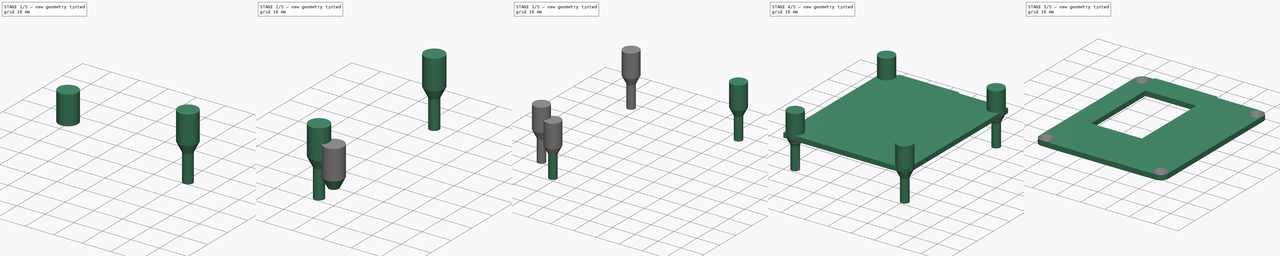
[diagram: build sequence overview — one tinted view per stage of 5, left to right]
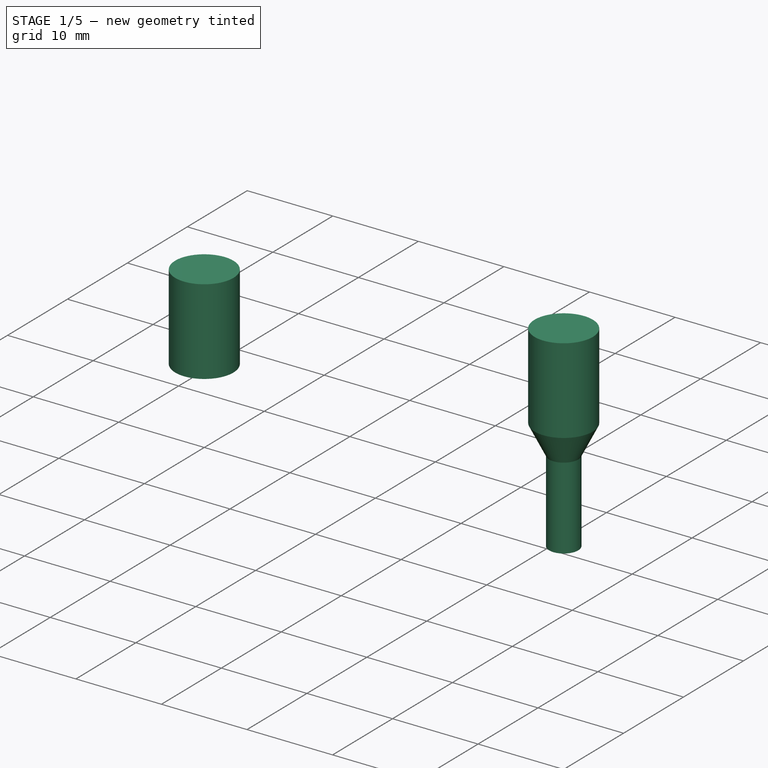
[diagram: stage 1 of 5 — iso view after this stage's code; geometry added in this stage tinted green]
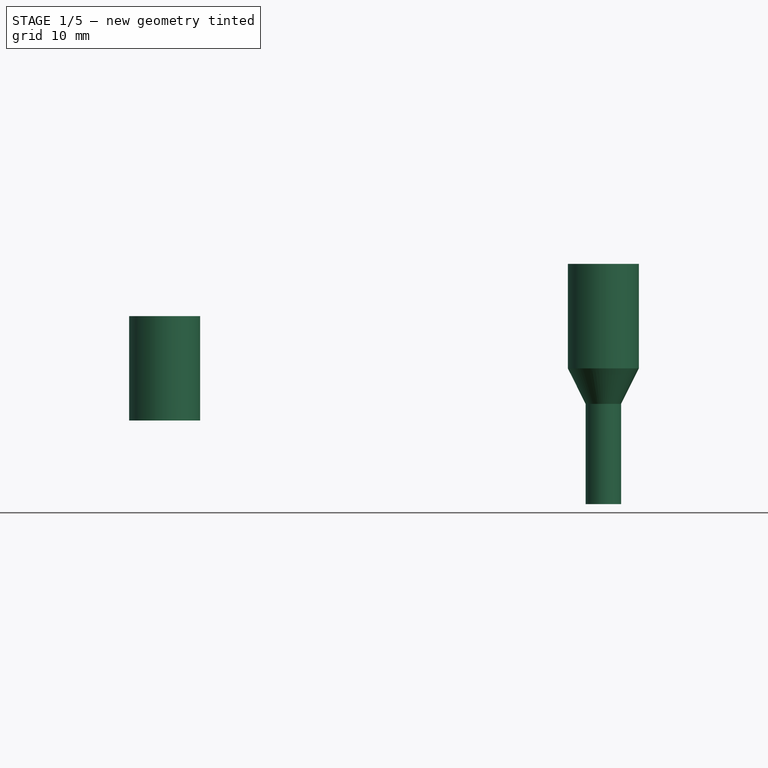
[diagram: stage 1 of 5 — front view after this stage's code; geometry added in this stage tinted green]
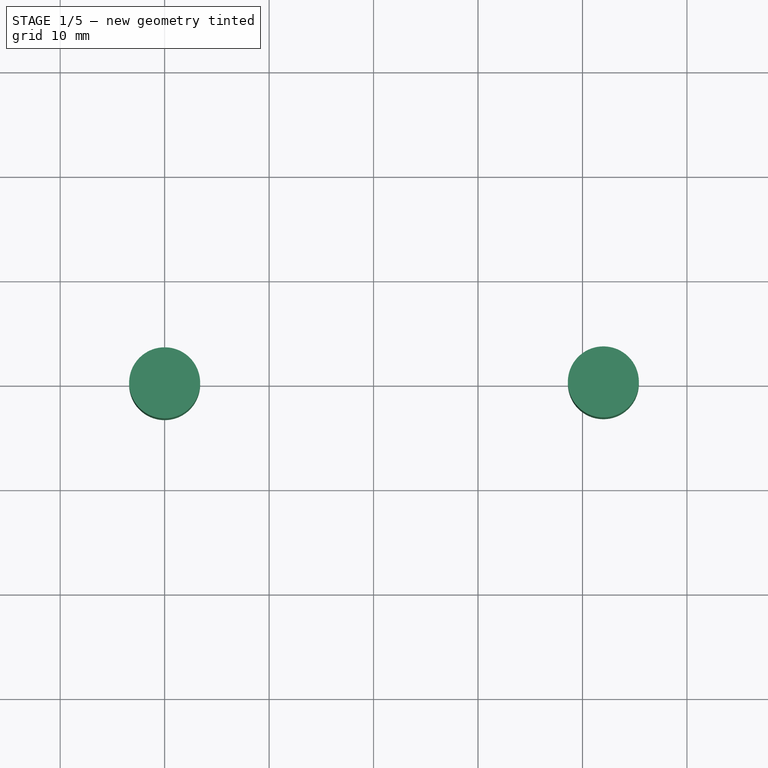
[diagram: stage 1 of 5 — top view after this stage's code; geometry added in this stage tinted green]
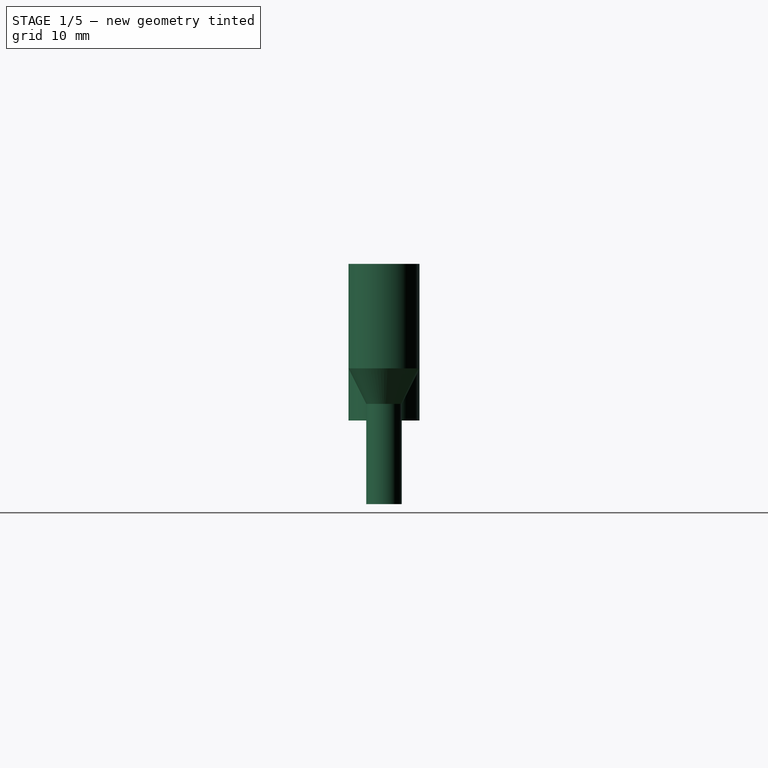
[diagram: stage 1 of 5 — right view after this stage's code; geometry added in this stage tinted green]
FCSTD DOCUMENT  (FreeCAD 0.19R24291 (Git))
Label: top-flat
License: All rights reserved
LicenseURL: http://en.wikipedia.org/wiki/All_rights_reserved
objects: Part::MultiFuse×8, Part::Cylinder×8, Part::Cone×4, Sketcher::SketchObject×2, PartDesign::Pad×2, Part::Cut×2, PartDesign::Body×1, Part::Compound×1, Part::Box×1, Part::Fillet×1
note: 32 computed .brp shape members not serialized (recipe doc carries the construction recipe); baked Part::Feature solids carry a one-line shape summary decoded from their .brp

FEATURE [Part::Cone] Cone003  label="grab-screw-head002"
  Angle = 360
  AttacherType = Attacher::AttachEngine3D
  Height = 3.4
  Radius1 = 1.7
  Radius2 = 3.4
FEATURE [Part::Cylinder] Cylinder005  label="grab-screw-head-extension002"
  Angle = 360
  AttacherType = Attacher::AttachEngine3D
  Height = 10
  Placement = pos=(0,0,3.4) rot=(0,0,1;0rad)
  Radius = 3.4
FEATURE [Part::Cylinder] Cylinder007  label="grab-screw-thread003"
  Angle = 360
  AttacherType = Attacher::AttachEngine3D
  Height = 9.6
  Placement = pos=(0,0,-9.6) rot=(0,0,1;0rad)
  Radius = 1.7
FEATURE [Part::MultiFuse] Fusion005  label="grab-screw003"
  Placement = pos=(42,0,5) rot=(0,0,1;0rad)
  Shapes = -> [Cylinder007,Cone003,Cylinder005]
FEATURE [Part::Cylinder] Cylinder008  label="grab-screw-head-extension003"
  Angle = 360
  AttacherType = Attacher::AttachEngine3D
  Height = 10
  Placement = pos=(0,0,3.4) rot=(0,0,1;0rad)
  Radius = 3.4
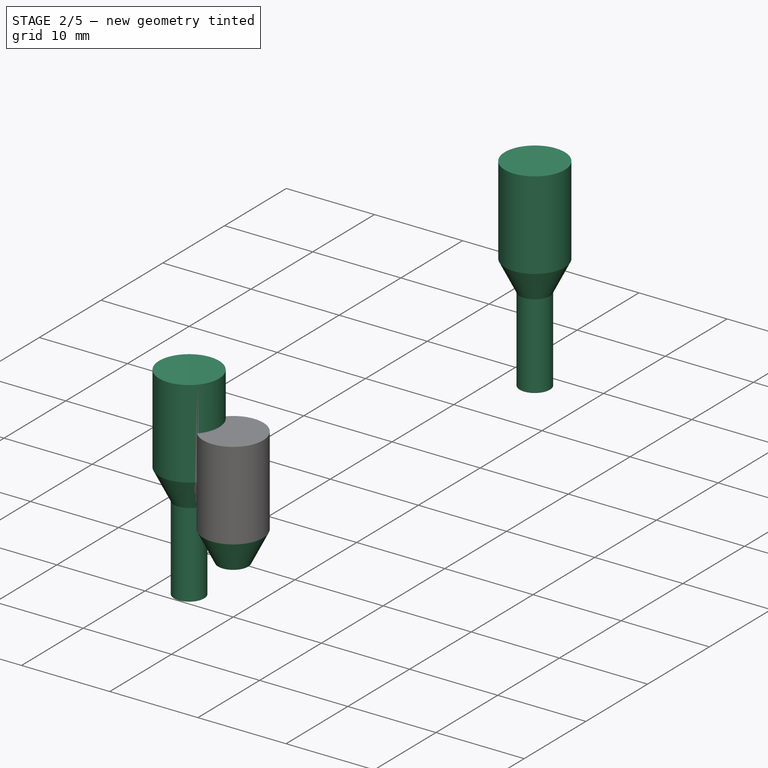
[diagram: stage 2 of 5 — iso view after this stage's code; geometry added in this stage tinted green]
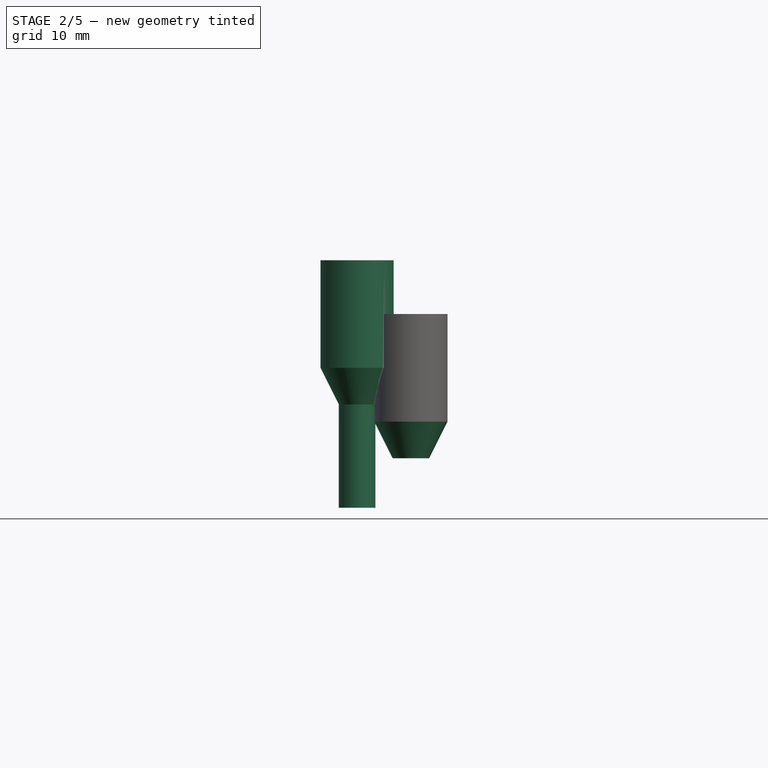
[diagram: stage 2 of 5 — front view after this stage's code; geometry added in this stage tinted green]
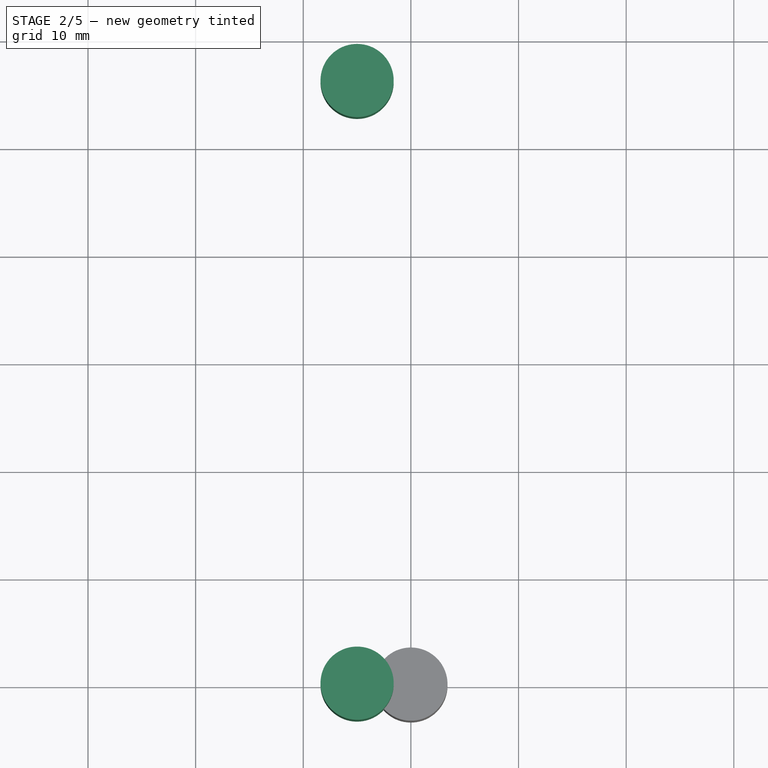
[diagram: stage 2 of 5 — top view after this stage's code; geometry added in this stage tinted green]
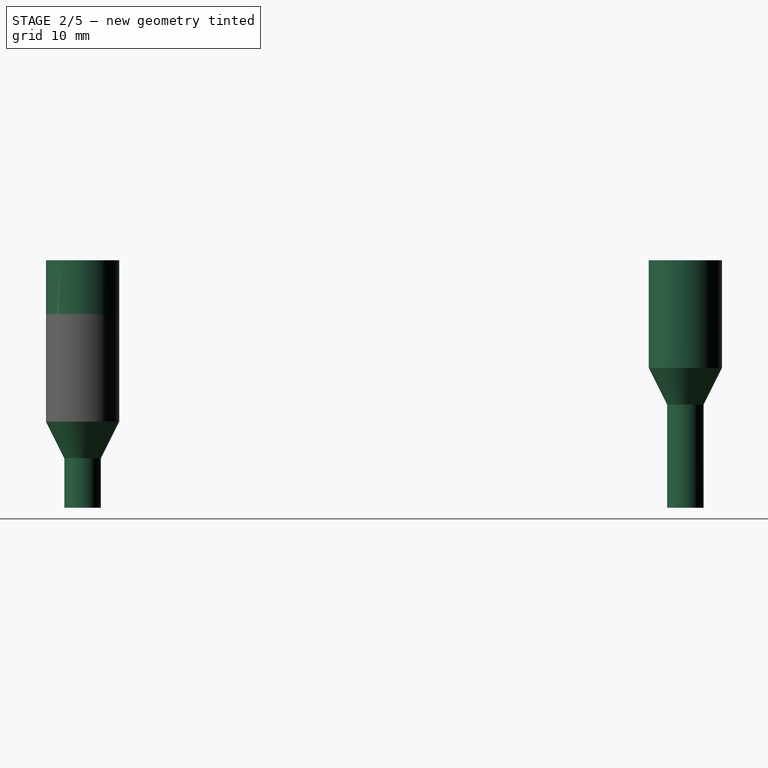
[diagram: stage 2 of 5 — right view after this stage's code; geometry added in this stage tinted green]
FEATURE [Part::Cone] Cone001  label="grab-screw-head"
  Angle = 360
  AttacherType = Attacher::AttachEngine3D
  Height = 3.4
  Radius1 = 1.7
  Radius2 = 3.4
FEATURE [Part::Cylinder] Cylinder002  label="grab-screw-head-extension"
  Angle = 360
  AttacherType = Attacher::AttachEngine3D
  Height = 10
  Placement = pos=(0,0,3.4) rot=(0,0,1;0rad)
  Radius = 3.4
FEATURE [Part::Cylinder] Cylinder006  label="grab-screw-thread002"
  Angle = 360
  AttacherType = Attacher::AttachEngine3D
  Height = 9.6
  Placement = pos=(0,0,-9.6) rot=(0,0,1;0rad)
  Radius = 1.7
FEATURE [Part::Cone] Cone004  label="grab-screw-head003"
  Angle = 360
  AttacherType = Attacher::AttachEngine3D
  Height = 3.4
  Radius1 = 1.7
  Radius2 = 3.4
FEATURE [Part::MultiFuse] Fusion004  label="grab-screw002"
  Placement = pos=(42,56,5) rot=(0,0,1;0rad)
  Shapes = -> [Cylinder006,Cone004,Cylinder008]
FEATURE [Part::MultiFuse] Fusion003  label="left-screws"
  Placement = pos=(-47,0,0) rot=(0,0,1;0rad)
  Shapes = -> [Fusion005,Fusion004]
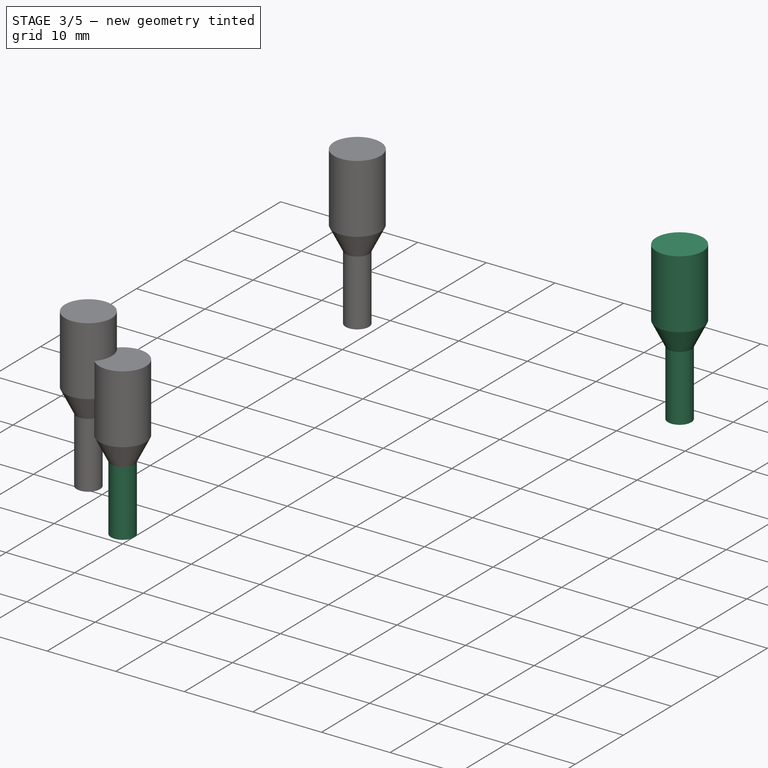
[diagram: stage 3 of 5 — iso view after this stage's code; geometry added in this stage tinted green]
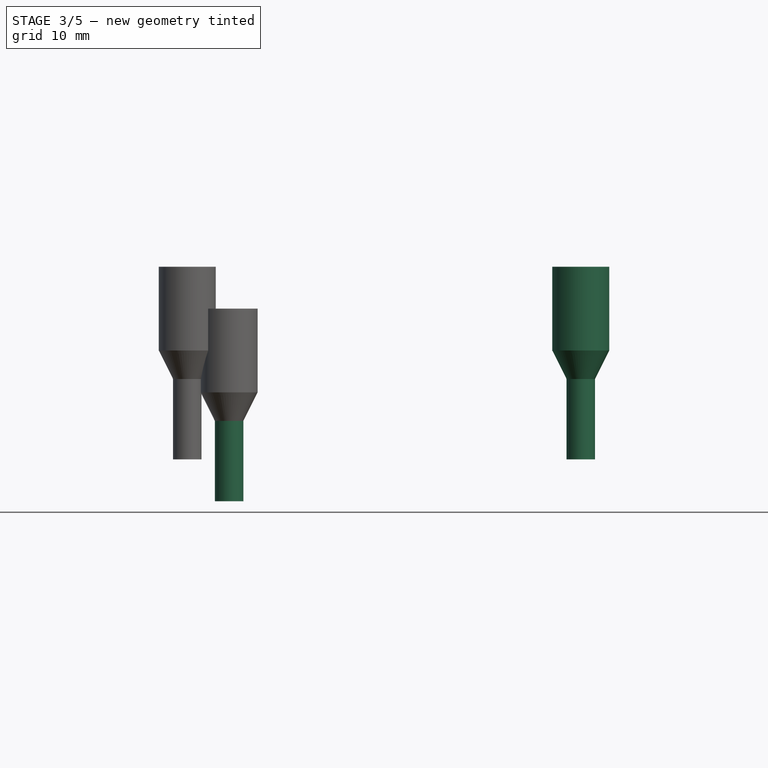
[diagram: stage 3 of 5 — front view after this stage's code; geometry added in this stage tinted green]
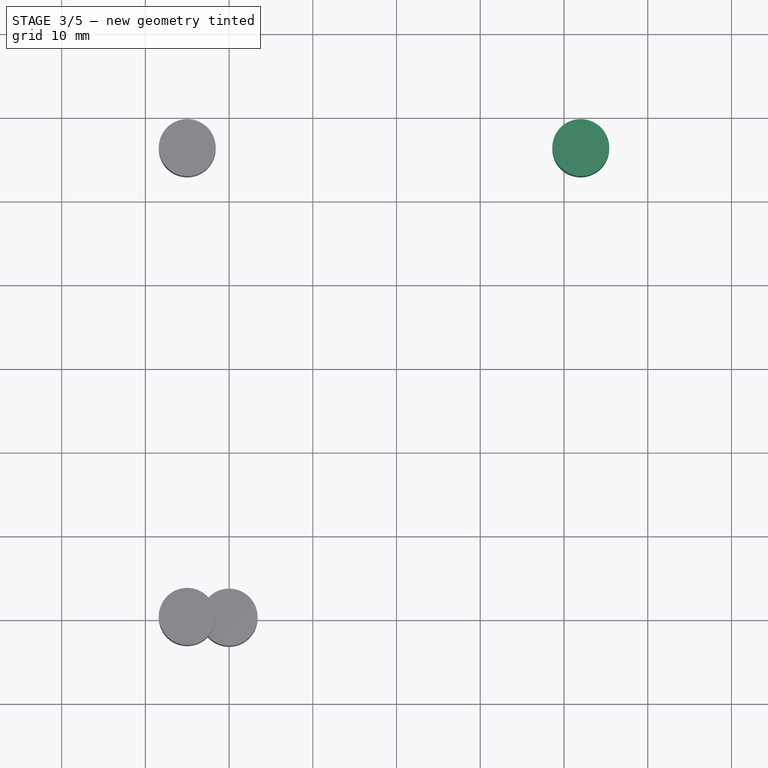
[diagram: stage 3 of 5 — top view after this stage's code; geometry added in this stage tinted green]
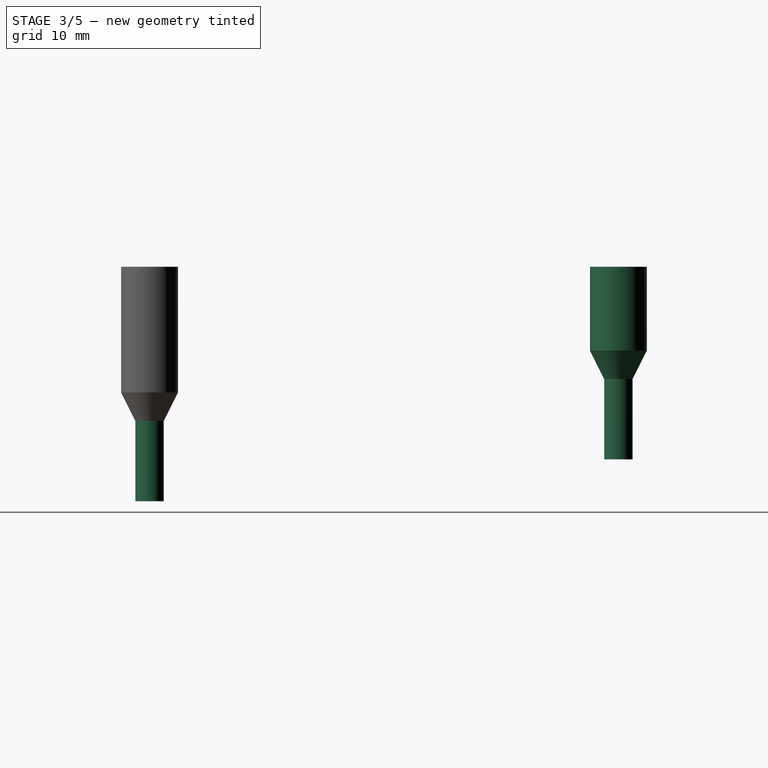
[diagram: stage 3 of 5 — right view after this stage's code; geometry added in this stage tinted green]
FEATURE [Part::Cone] Cone002  label="grab-screw-head001"
  Angle = 360
  AttacherType = Attacher::AttachEngine3D
  Height = 3.4
  Radius1 = 1.7
  Radius2 = 3.4
FEATURE [Part::Cylinder] Cylinder003  label="grab-screw-head-extension001"
  Angle = 360
  AttacherType = Attacher::AttachEngine3D
  Height = 10
  Placement = pos=(0,0,3.4) rot=(0,0,1;0rad)
  Radius = 3.4
FEATURE [Part::Cylinder] Cylinder004  label="grab-screw-thread001"
  Angle = 360
  AttacherType = Attacher::AttachEngine3D
  Height = 9.6
  Placement = pos=(0,0,-9.6) rot=(0,0,1;0rad)
  Radius = 1.7
FEATURE [Part::MultiFuse] Fusion002  label="grab-screw001"
  Placement = pos=(42,56,5) rot=(0,0,1;0rad)
  Shapes = -> [Cylinder004,Cone002,Cylinder003]
FEATURE [Part::Cylinder] Cylinder001  label="grab-screw-thread"
  Angle = 360
  AttacherType = Attacher::AttachEngine3D
  Height = 9.6
  Placement = pos=(0,0,-9.6) rot=(0,0,1;0rad)
  Radius = 1.7
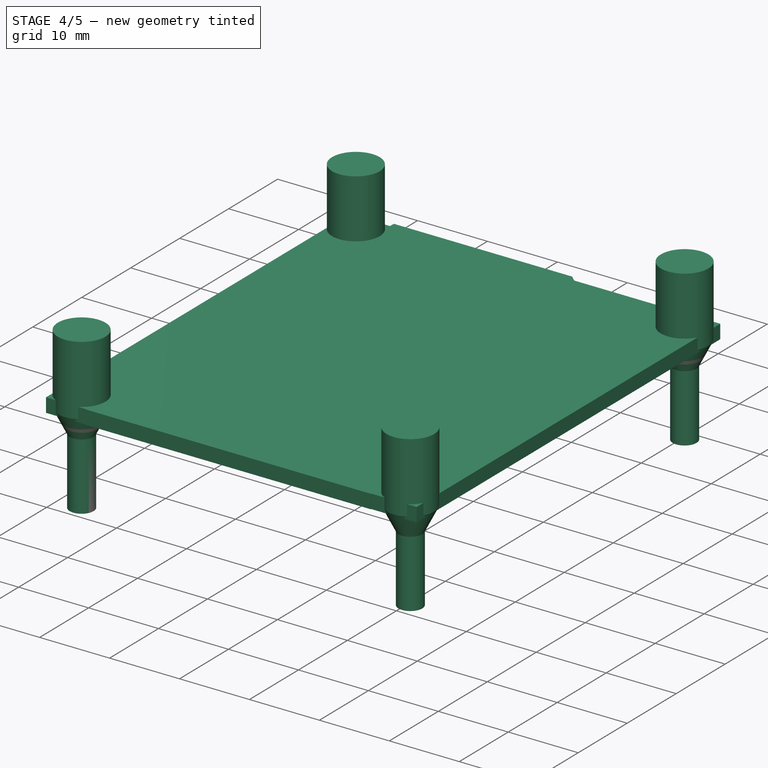
[diagram: stage 4 of 5 — iso view after this stage's code; geometry added in this stage tinted green]
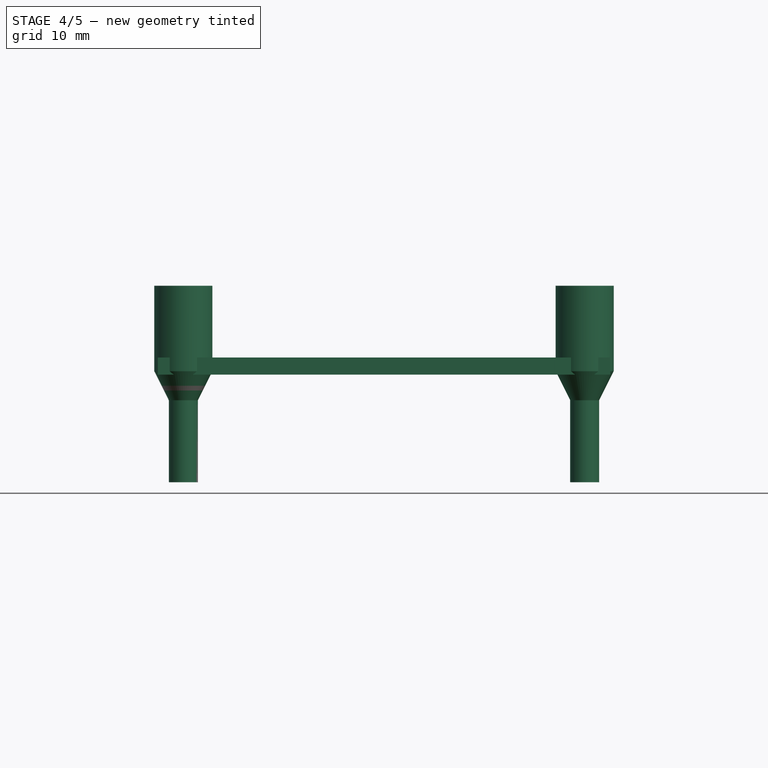
[diagram: stage 4 of 5 — front view after this stage's code; geometry added in this stage tinted green]
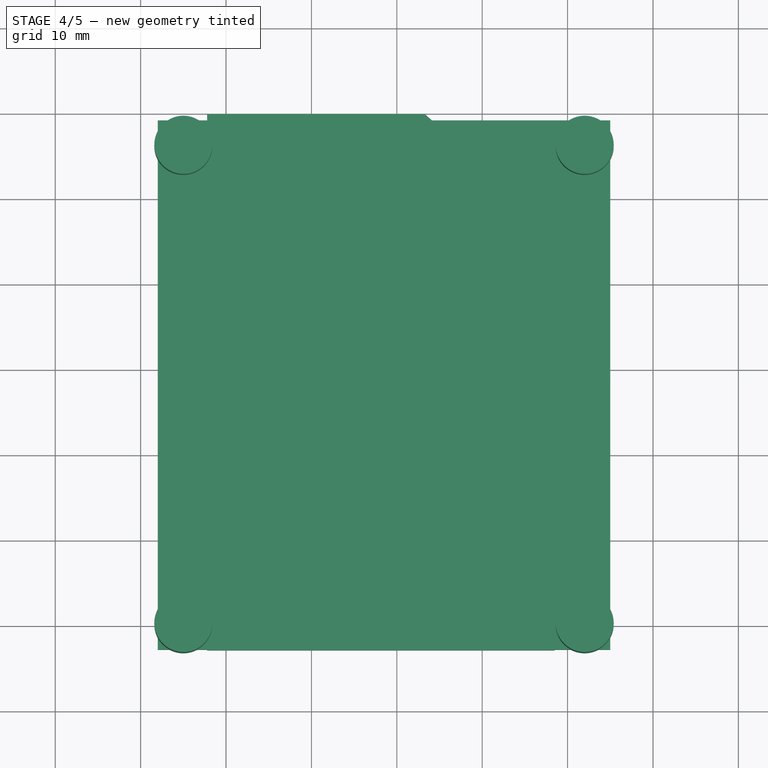
[diagram: stage 4 of 5 — top view after this stage's code; geometry added in this stage tinted green]
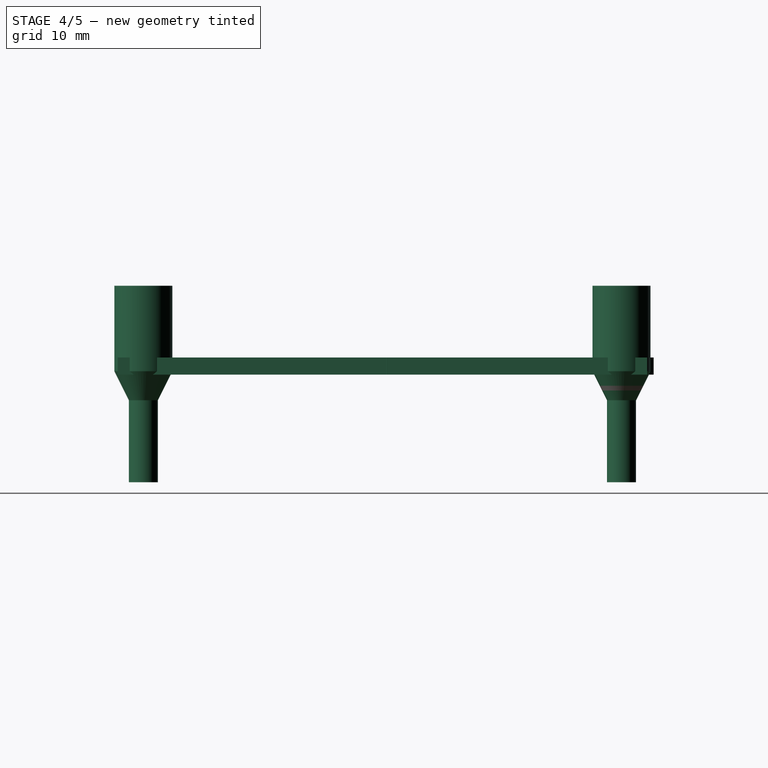
[diagram: stage 4 of 5 — right view after this stage's code; geometry added in this stage tinted green]
FEATURE [PartDesign::Body] Body001  label="bottom-button"
  Group = -> [Sketch001,Pad001]
  Origin = -> Origin001
  Placement = pos=(0,0,-2) rot=(0,0,1;0rad)
  Tip = -> Pad001
FEATURE [Sketcher::SketchObject] Sketch002
  FullyConstrained = false
  MapMode = 5
  Support = -> [XY_Plane002]
  sketch-geometry (6):
    g0: LineSegment StartX=-2.21516 StartY=59.7598 StartZ=0 EndX=-2.21516 EndY=-3.07541 EndZ=0
    g1: LineSegment StartX=-2.21516 StartY=-3.07541 StartZ=0 EndX=38.4894 EndY=-3.07541 EndZ=0
    g2: LineSegment StartX=38.4894 StartY=-3.07541 StartZ=0 EndX=45.01 EndY=28.5398 EndZ=0
    g3: LineSegment StartX=45.01 StartY=28.5398 StartZ=0 EndX=36.9087 EndY=47.5089 EndZ=0
    g4: LineSegment StartX=36.9087 StartY=47.5089 StartZ=0 EndX=23.2746 EndY=59.7598 EndZ=0
    g5: LineSegment StartX=23.2746 StartY=59.7598 StartZ=0 EndX=-2.21516 EndY=59.7598 EndZ=0
  constraints (9):
    c: Vertical(g0)
    c: Coincident(g0,g1)
    c: Horizontal(g1)
    c: Coincident(g1,g2)
    c: Coincident(g2,g3)
    c: Coincident(g3,g4)
    c: Coincident(g4,g5)
    c: Coincident(g5,g0)
    c: Horizontal(g5)
FEATURE [PartDesign::Pad] Pad002
  Direction = (1,1,1)
  Length = 2
  Length2 = 100
  Profile = -> Sketch002
  Type = 0
FEATURE [Part::Compound] Compound
  Links = -> [Pad002]
  Placement = pos=(0,0,20) rot=(0,0,1;0rad)
FEATURE [Part::Box] Box001  label="top-plate001"
  AttacherType = Attacher::AttachEngine3D
  Height = 2
  Length = 53
  Placement = pos=(-8,-3,20) rot=(0,0,1;0rad)
  Width = 62
FEATURE [Part::MultiFuse] Fusion001  label="grab-screw"
  Placement = pos=(42,0,5) rot=(0,0,1;0rad)
  Shapes = -> [Cylinder001,Cone001,Cylinder002]
FEATURE [Part::MultiFuse] Fusion  label="right-screws"
  Shapes = -> [Fusion001,Fusion002]
FEATURE [Part::MultiFuse] Fusion006  label="all-screws"
  Placement = pos=(0,0,12) rot=(0,0,1;0rad)
  Shapes = -> [Fusion003,Fusion]
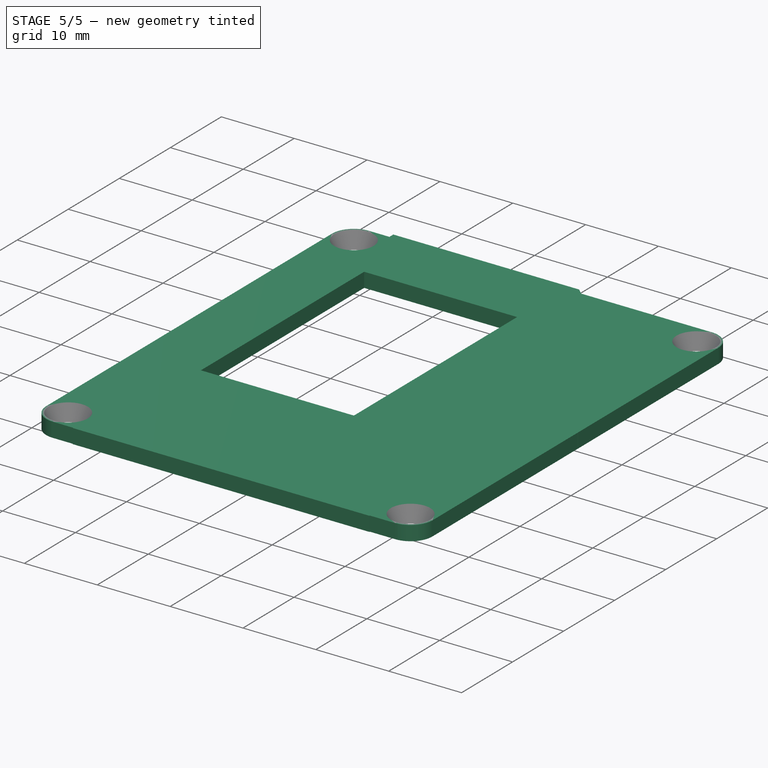
[diagram: stage 5 of 5 — iso view after this stage's code; geometry added in this stage tinted green]
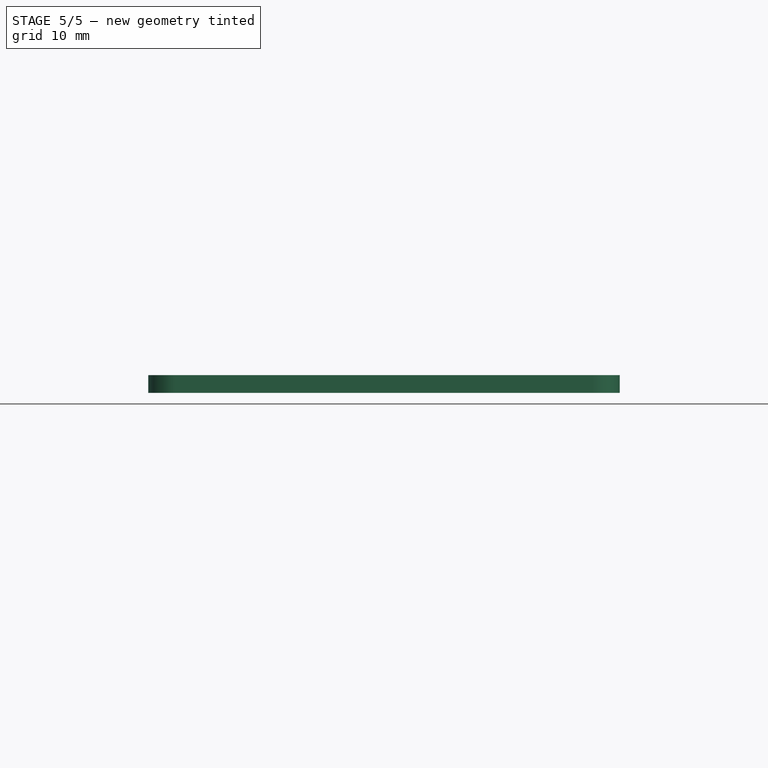
[diagram: stage 5 of 5 — front view after this stage's code; geometry added in this stage tinted green]
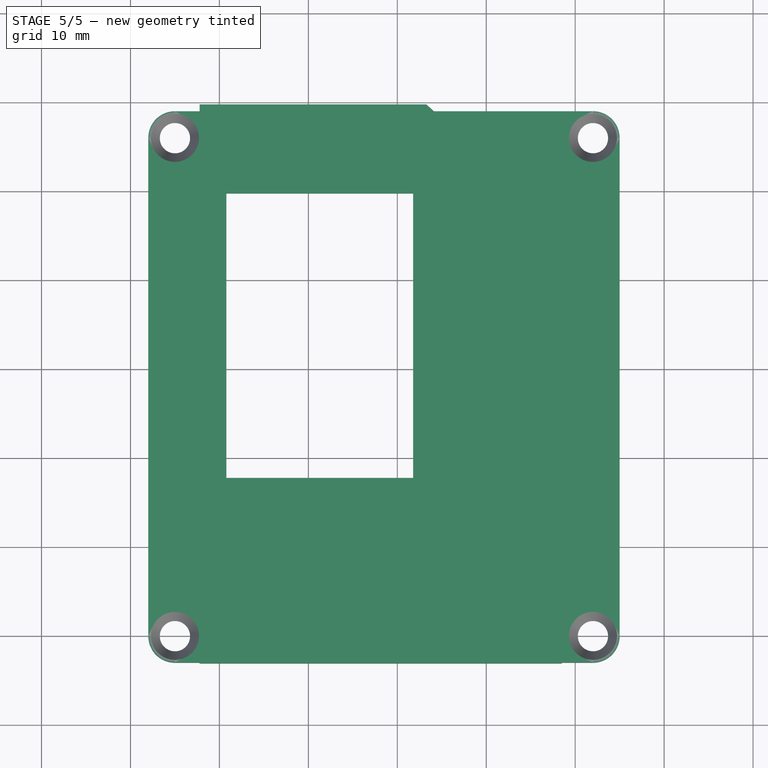
[diagram: stage 5 of 5 — top view after this stage's code; geometry added in this stage tinted green]
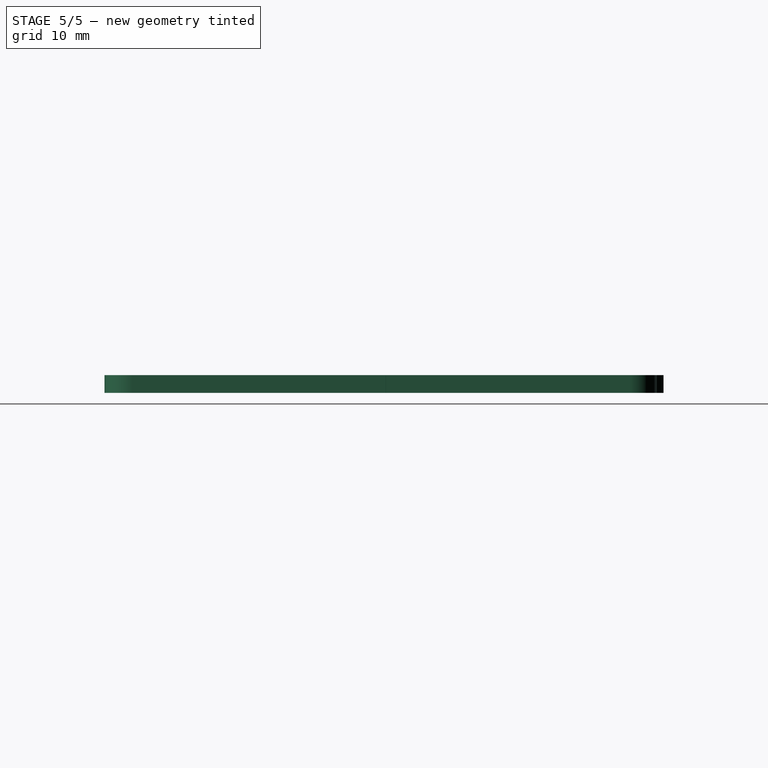
[diagram: stage 5 of 5 — right view after this stage's code; geometry added in this stage tinted green]
FEATURE [Sketcher::SketchObject] Sketch001
  FullyConstrained = false
  MapMode = 5
  Support = -> [XY_Plane001]
  sketch-geometry (10):
    g0: LineSegment StartX=-2.22 StartY=59.76 StartZ=0 EndX=-2.22 EndY=-3.08 EndZ=0
    g1: LineSegment StartX=-2.22 StartY=-3.08 StartZ=0 EndX=38.49 EndY=-3.08 EndZ=0
    g2: LineSegment StartX=38.49 StartY=-3.08 StartZ=0 EndX=45.01 EndY=28.5398 EndZ=0
    g3: LineSegment StartX=45.01 StartY=28.5398 StartZ=0 EndX=36.9087 EndY=47.5089 EndZ=0
    g4: LineSegment StartX=36.9087 StartY=47.5089 StartZ=0 EndX=23.2746 EndY=59.76 EndZ=0
    g5: LineSegment StartX=23.2746 StartY=59.76 StartZ=0 EndX=-2.22 EndY=59.76 EndZ=0
    g6: LineSegment StartX=0.78 StartY=49.76 StartZ=0 EndX=21.78 EndY=49.76 EndZ=0
    g7: LineSegment StartX=21.78 StartY=49.76 StartZ=0 EndX=21.78 EndY=17.76 EndZ=0
    g8: LineSegment StartX=21.78 StartY=17.76 StartZ=0 EndX=0.78 EndY=17.76 EndZ=0
    g9: LineSegment StartX=0.78 StartY=17.76 StartZ=0 EndX=0.78 EndY=49.76 EndZ=0
  constraints (25):
    c: Vertical(g0)
    c: Coincident(g0,g1)
    c: Horizontal(g1)
    c: Coincident(g1,g2)
    c: Coincident(g2,g3)
    c: Coincident(g3,g4)
    c: Coincident(g4,g5)
    c: Coincident(g5,g0)
    c: Horizontal(g5)
    c: DistanceY(g0,g-1) = 3.08
    c: DistanceY(g-1,g0) = 59.76
    c: DistanceX(g0,g-1) = 2.22
    c: DistanceX(g-1,g1) = 38.49
    c: Coincident(g6,g7)
    c: Coincident(g7,g8)
    c: Coincident(g8,g9)
    c: Coincident(g9,g6)
    c: Horizontal(g6)
    c: Horizontal(g8)
    c: Vertical(g7)
    c: Vertical(g9)
    c: DistanceX(g0,g6) = 3
    c: DistanceX(g0,g6) = 24
    c: DistanceY(g6,g0) = 10
    c: DistanceY(g8,g0) = 42
FEATURE [PartDesign::Pad] Pad001
  Direction = (1,1,1)
  Length = 2
  Length2 = 100
  Profile = -> Sketch001
  Type = 0
FEATURE [Part::Cut] Cut  label="bottom-plate-extension"
  Base = -> Box001
  Placement = pos=(0,0,-22) rot=(0,0,1;0rad)
  Tool = -> Compound
FEATURE [Part::Fillet] Fillet
  Base = -> Cut
  Edges = 4 edges r=3: [Edge1,Edge3,Edge14,Edge27]
FEATURE [Part::MultiFuse] Fusion010  label="button-plate"
  Placement = pos=(0,0,19) rot=(0,0,1;0rad)
  Shapes = -> [Body001,Fillet]
FEATURE [Part::Cut] Cut001  label="top-flat"
  Base = -> Fusion010
  Tool = -> Fusion006
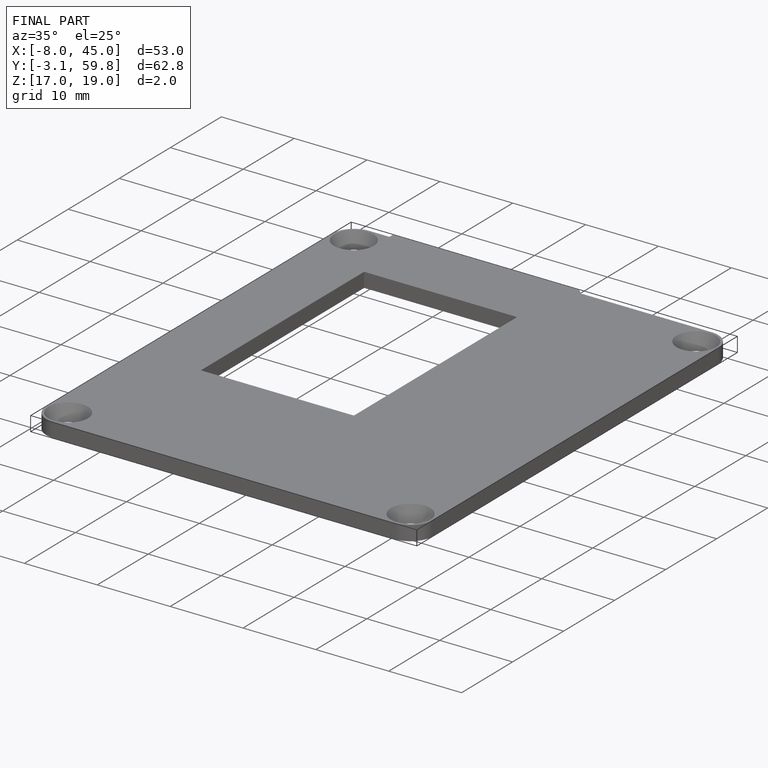
[diagram: finished part — iso view with bounding-box wireframe]
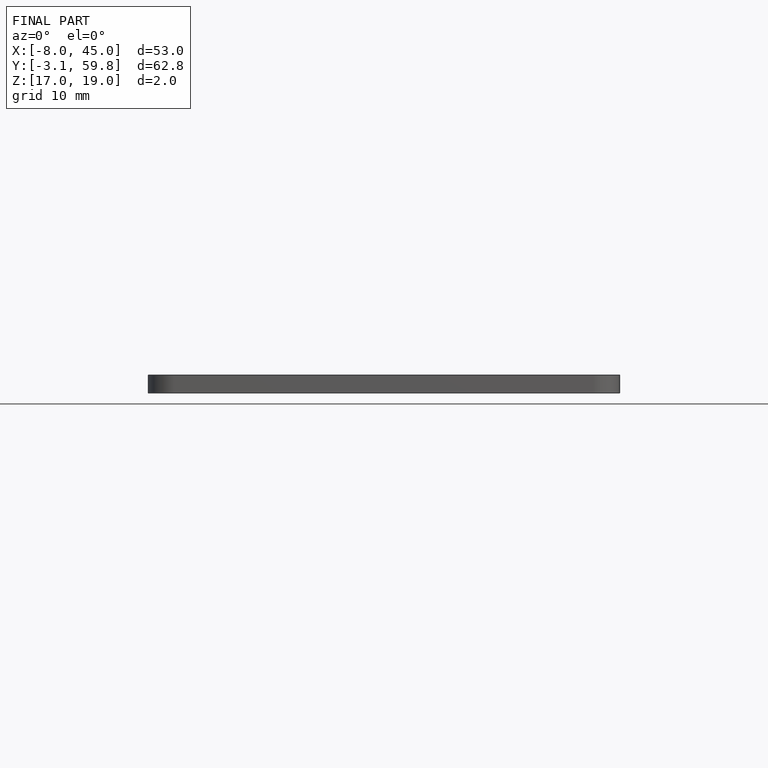
[diagram: finished part — front view with bounding-box wireframe]
